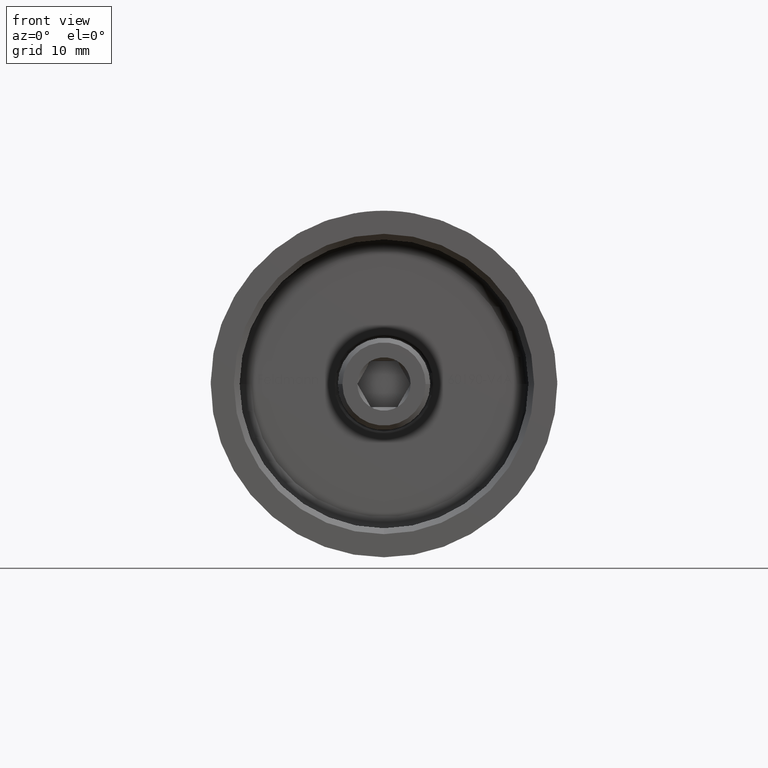
[diagram: clean part render]
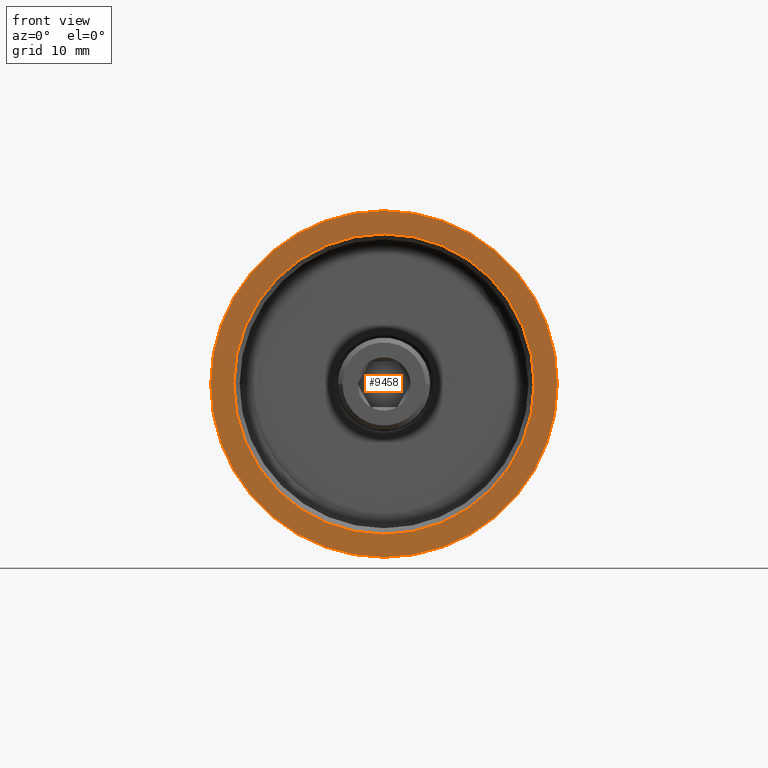
[diagram: same view with one face highlighted and labeled with its STEP entity id]
A machine part, front view. The second image highlights one B-rep face of the part: STEP entity #9458.
In plain terms, the highlighted planar face has unit normal (-0, -1, 0).
Its self-contained STEP definition (entity closure, byte-faithful):
#68 = EDGE_CURVE ( 'NONE', #1368, #8914, #3057, .T. ) ;
#305 = DIRECTION ( 'NONE',  ( 1.000000000000000000, -1.650797095189058583E-31, 0.000000000000000000 ) ) ;
#647 = CARTESIAN_POINT ( 'NONE',  ( 15.00000000000000000, -1.530808498934194036E-16, 0.000000000000000000 ) ) ;
#1081 = ORIENTED_EDGE ( 'NONE', *, *, #3920, .T. ) ;
#1368 = VERTEX_POINT ( 'NONE', #3402 ) ;
#2098 = CARTESIAN_POINT ( 'NONE',  ( -15.00000000000000355, 2.476195642783588203E-30, 1.836970198721029983E-15 ) ) ;
#2856 = VERTEX_POINT ( 'NONE', #10858 ) ;
#3057 = CIRCLE ( 'NONE', #3104, 13.00000000000001066 ) ;
#3093 = DIRECTION ( 'NONE',  ( 1.000000000000000000, -1.650797095189058802E-31, 0.000000000000000000 ) ) ;
#3104 = AXIS2_PLACEMENT_3D ( 'NONE', #11430, #8095, #10426 ) ;
#3402 = CARTESIAN_POINT ( 'NONE',  ( -9.797174393178827630E-16, -1.530808498934169384E-16, 13.00000000000001066 ) ) ;
#3657 = FACE_OUTER_BOUND ( 'NONE', #4722, .T. ) ;
#3920 = EDGE_CURVE ( 'NONE', #2856, #5221, #11824, .T. ) ;
#4072 = PLANE ( 'NONE',  #7869 ) ;
#4722 = EDGE_LOOP ( 'NONE', ( #1081, #14015 ) ) ;
#4952 = AXIS2_PLACEMENT_3D ( 'NONE', #5278, #14255, #8769 ) ;
#5221 = VERTEX_POINT ( 'NONE', #2098 ) ;
#5278 = CARTESIAN_POINT ( 'NONE',  ( -2.571758278209443239E-15, -1.530808498934169384E-16, 0.000000000000000000 ) ) ;
#5569 = CIRCLE ( 'NONE', #4952, 13.00000000000001066 ) ;
#5963 = CARTESIAN_POINT ( 'NONE',  ( -2.571758278209443239E-15, -1.530808498934169384E-16, -13.00000000000001066 ) ) ;
#6410 = ORIENTED_EDGE ( 'NONE', *, *, #68, .T. ) ;
#6411 = CIRCLE ( 'NONE', #9579, 15.00000000000000178 ) ;
#6625 = AXIS2_PLACEMENT_3D ( 'NONE', #11807, #9607, #10743 ) ;
#6941 = CARTESIAN_POINT ( 'NONE',  ( -2.571758278209443239E-15, 0.000000000000000000, 0.000000000000000000 ) ) ;
#7550 = EDGE_LOOP ( 'NONE', ( #11943, #6410 ) ) ;
#7869 = AXIS2_PLACEMENT_3D ( 'NONE', #647, #14300, #3093 ) ;
#8095 = DIRECTION ( 'NONE',  ( 1.650797095189058802E-31, 1.000000000000000000, 0.000000000000000000 ) ) ;
#8175 = DIRECTION ( 'NONE',  ( -1.650797095189058802E-31, -1.000000000000000000, -0.000000000000000000 ) ) ;
#8769 = DIRECTION ( 'NONE',  ( 1.000000000000000000, -1.648151587023690806E-31, 0.000000000000000000 ) ) ;
#8914 = VERTEX_POINT ( 'NONE', #5963 ) ;
#9303 = FACE_BOUND ( 'NONE', #7550, .T. ) ;
#9458 = ADVANCED_FACE ( 'NONE', ( #9303, #3657 ), #4072, .T. ) ;
#9579 = AXIS2_PLACEMENT_3D ( 'NONE', #6941, #8175, #305 ) ;
#9607 = DIRECTION ( 'NONE',  ( -1.650797095189058802E-31, -1.000000000000000000, -0.000000000000000000 ) ) ;
#10426 = DIRECTION ( 'NONE',  ( 1.000000000000000000, -1.648151587023690806E-31, 0.000000000000000000 ) ) ;
#10743 = DIRECTION ( 'NONE',  ( 1.000000000000000000, -1.650797095189058583E-31, 0.000000000000000000 ) ) ;
#10858 = CARTESIAN_POINT ( 'NONE',  ( 15.00000000000000000, -2.476195642783588203E-30, 0.000000000000000000 ) ) ;
#11210 = EDGE_CURVE ( 'NONE', #8914, #1368, #5569, .T. ) ;
#11430 = CARTESIAN_POINT ( 'NONE',  ( -2.571758278209443239E-15, -1.530808498934169384E-16, 0.000000000000000000 ) ) ;
#11807 = CARTESIAN_POINT ( 'NONE',  ( -2.571758278209443239E-15, 0.000000000000000000, 0.000000000000000000 ) ) ;
#11824 = CIRCLE ( 'NONE', #6625, 15.00000000000000178 ) ;
#11943 = ORIENTED_EDGE ( 'NONE', *, *, #11210, .T. ) ;
#14015 = ORIENTED_EDGE ( 'NONE', *, *, #14359, .T. ) ;
#14255 = DIRECTION ( 'NONE',  ( 1.650797095189058802E-31, 1.000000000000000000, 0.000000000000000000 ) ) ;
#14300 = DIRECTION ( 'NONE',  ( -1.650797095189058802E-31, -1.000000000000000000, 0.000000000000000000 ) ) ;
#14359 = EDGE_CURVE ( 'NONE', #5221, #2856, #6411, .T. ) ;